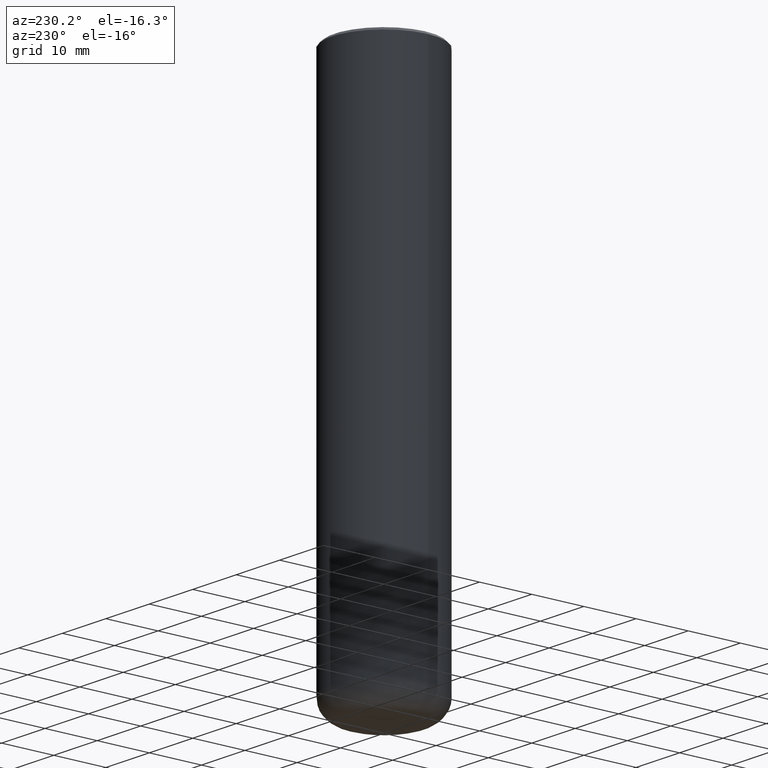
[diagram: clean part render]
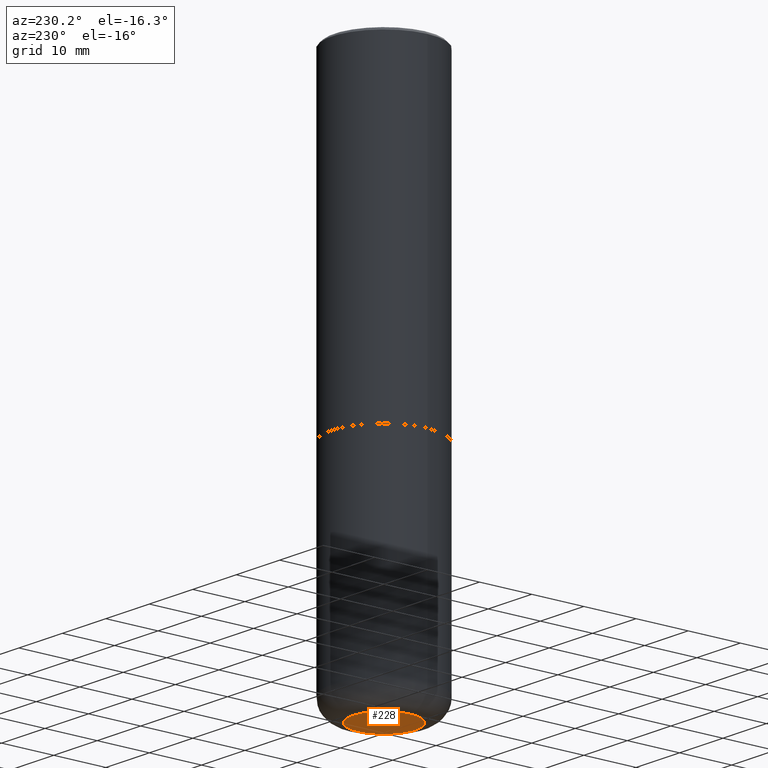
[diagram: same view with one face highlighted and labeled with its STEP entity id]
A machine part, auxiliary view. The second image highlights one B-rep face of the part: STEP entity #228.
In plain terms, the highlighted planar face has unit normal (0, -0, -1).
Its self-contained STEP definition (entity closure, byte-faithful):
#26 = FACE_OUTER_BOUND ( 'NONE', #266, .T. ) ;
#30 = DIRECTION ( 'NONE',  ( 1.000000000000000000, -6.982962677686262766E-15, 0.000000000000000000 ) ) ;
#38 = ORIENTED_EDGE ( 'NONE', *, *, #243, .F. ) ;
#58 = VERTEX_POINT ( 'NONE', #107 ) ;
#97 = CARTESIAN_POINT ( 'NONE',  ( 0.2362000000000000766, -1.594524612636275486E-14, -4.094500000000000028 ) ) ;
#107 = CARTESIAN_POINT ( 'NONE',  ( -0.2362000000000000766, -1.178306184018292647E-14, -4.094500000000000028 ) ) ;
#120 = CARTESIAN_POINT ( 'NONE',  ( 1.001297202692504102E-28, -1.429587034189325834E-14, -4.094500000000000028 ) ) ;
#148 = AXIS2_PLACEMENT_3D ( 'NONE', #387, #279, #30 ) ;
#152 = DIRECTION ( 'NONE',  ( 2.438088387897960049E-29, -3.491481338843145188E-15, -1.000000000000000000 ) ) ;
#178 = DIRECTION ( 'NONE',  ( -1.000000000000000000, 6.982962677686265922E-15, -4.876176775795935793E-29 ) ) ;
#194 = AXIS2_PLACEMENT_3D ( 'NONE', #120, #302, #407 ) ;
#207 = EDGE_CURVE ( 'NONE', #58, #301, #273, .T. ) ;
#228 = ADVANCED_FACE ( 'NONE', ( #26 ), #313, .T. ) ;
#243 = EDGE_CURVE ( 'NONE', #301, #58, #394, .T. ) ;
#250 = CARTESIAN_POINT ( 'NONE',  ( 1.662671372229937224E-28, -4.824615803317197833E-15, -4.094500000000000028 ) ) ;
#257 = ORIENTED_EDGE ( 'NONE', *, *, #207, .F. ) ;
#266 = EDGE_LOOP ( 'NONE', ( #38, #257 ) ) ;
#273 = CIRCLE ( 'NONE', #148, 0.2362000000000000766 ) ;
#279 = DIRECTION ( 'NONE',  ( -2.445468806185136597E-29, 3.491481338843145583E-15, 1.000000000000000000 ) ) ;
#301 = VERTEX_POINT ( 'NONE', #97 ) ;
#302 = DIRECTION ( 'NONE',  ( -2.445468806185136597E-29, 3.491481338843145583E-15, 1.000000000000000000 ) ) ;
#313 = PLANE ( 'NONE',  #386 ) ;
#386 = AXIS2_PLACEMENT_3D ( 'NONE', #250, #152, #178 ) ;
#387 = CARTESIAN_POINT ( 'NONE',  ( 1.001297202692504102E-28, -1.429587034189325834E-14, -4.094500000000000028 ) ) ;
#394 = CIRCLE ( 'NONE', #194, 0.2362000000000000766 ) ;
#407 = DIRECTION ( 'NONE',  ( 1.000000000000000000, -6.982962677686262766E-15, 0.000000000000000000 ) ) ;